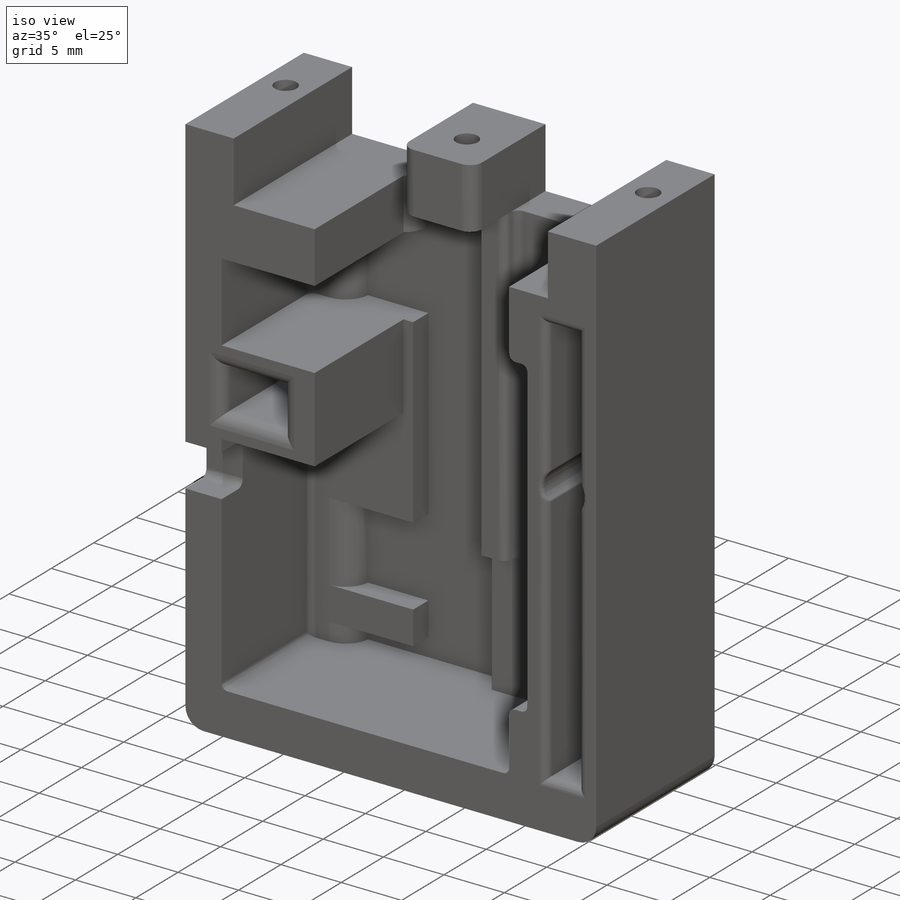
[diagram: iso view]
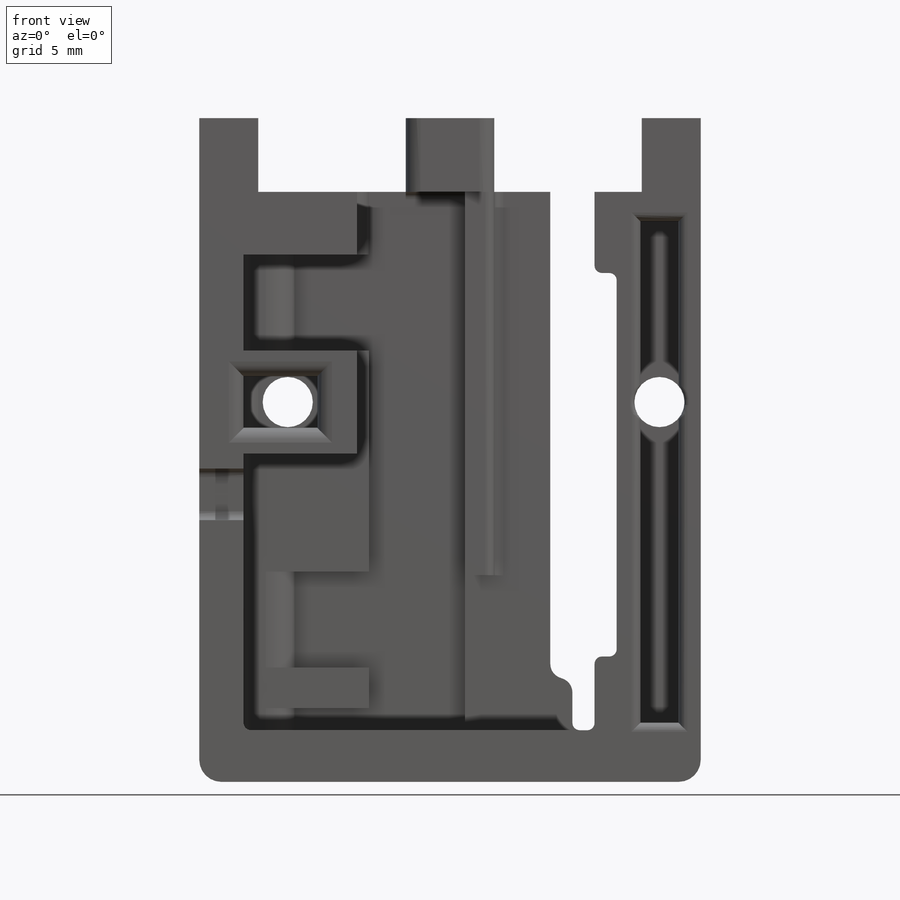
[diagram: front view]
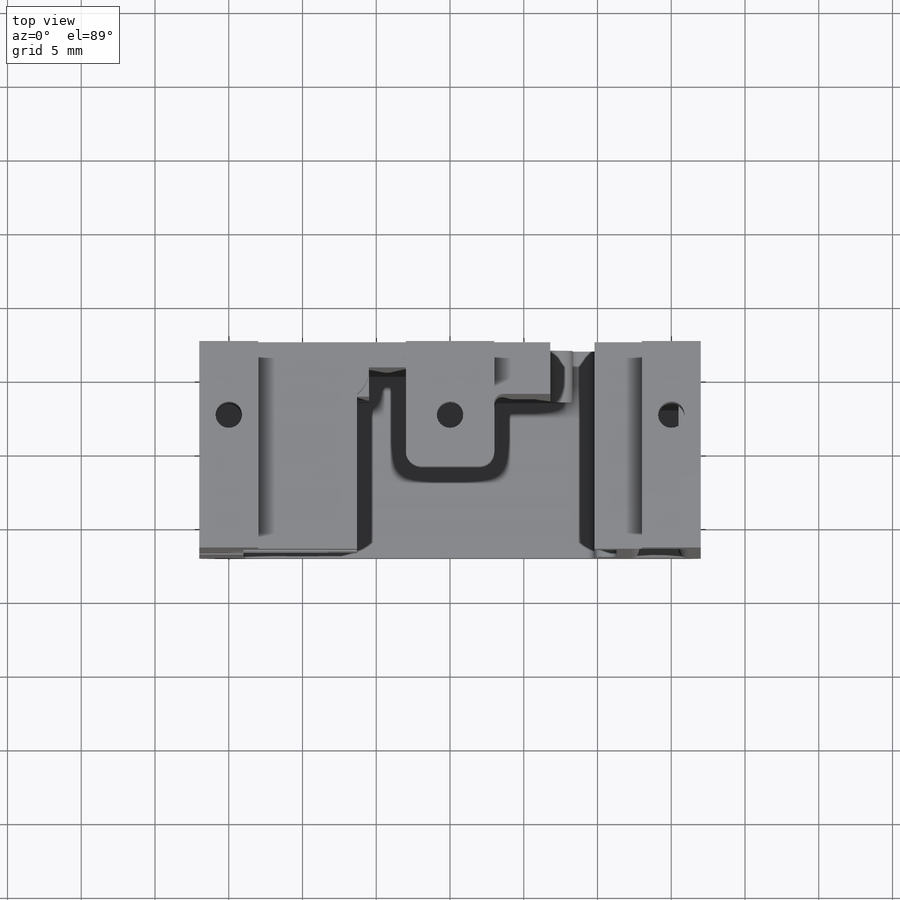
[diagram: top view]
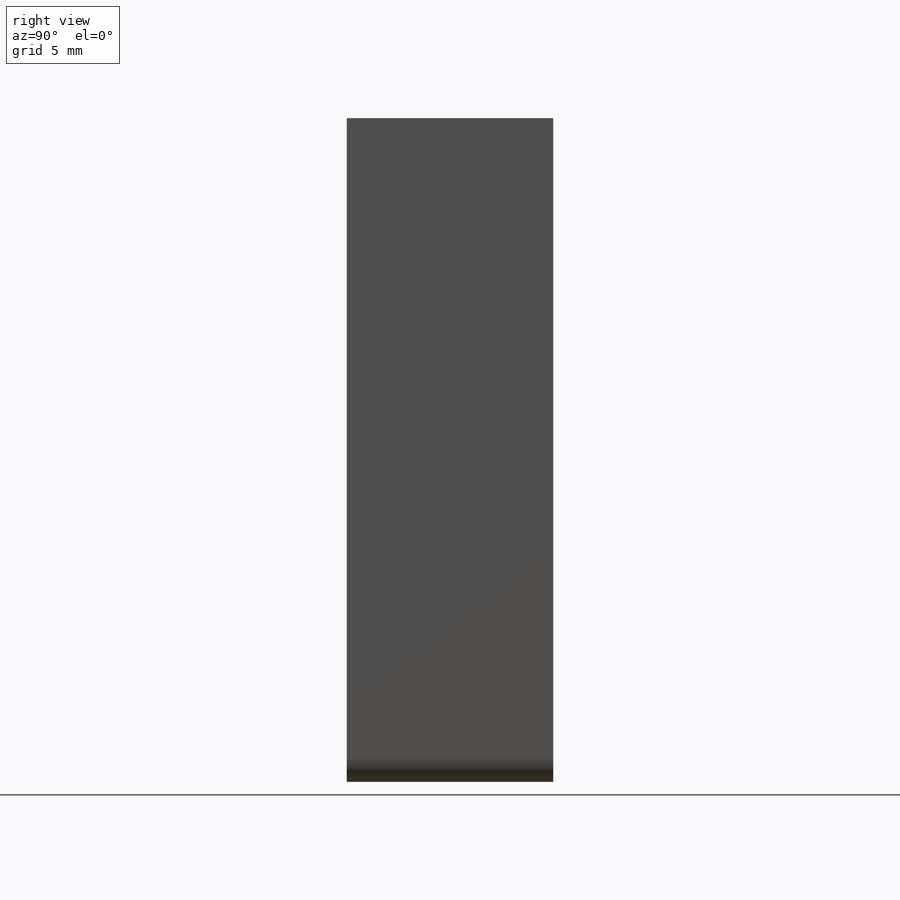
[diagram: right view]
SOLIDWORKS PART (.sldprt)
format: sldprt  version: not decoded by parser v0  size: 798,720 bytes
history: native  units: mm
features: fillet x18, sketch x17, cut_extrude x14, plane x3, extrude x3, material x1 (+10 scaffold rows collapsed)
feature tree (66):
  scaffold x10  (default folders/planes/origin — collapsed)
  material  "Nylon 101"
  plane  "Ebene vorne"
  plane  "Ebene oben"
  plane  "Ebene rechts"
  sketch  "front"  dims[c1.D1=~79.866411mm c1.D2=~62.761098mm c2.D1=34.0mm c2.D2=45.0mm]
  extrude  "front-body"  Depth=14mm
  sketch  "jig-channel"  dims[c1.D1=~5.908131mm c1.D2=~89.593422mm c2.D1=~40.464285mm c2.D2=~4.479671mm c3.D1=41.5mm c3.D2=1.5mm c3.D3=7.2mm]
  cut_extrude  "jig-cut"  [1 undecoded]
  sketch  "jig-channel-cut"  dims[c1.D1=~29.816485mm c1.D2=~1.149833mm c2.D1=1.5mm c2.D2=38.0mm c2.D3=7.0mm]
  cut_extrude  "jig-channel cut"  [1 undecoded]
  sketch  "rack-channle"  dims[c1.D1=~6.352342mm c1.D2=~10.135515mm c2.D1=10.0mm c2.D2=5.0mm c2.D3=4.0mm c2.D4=5.0mm c2.D5=~6.494669mm c3.D4=5.0mm c3.D5=10.0mm c3.D6=4.0mm]
  cut_extrude  "rack-channel"  [1 undecoded]
  sketch  "glider-range-cut"  dims[c1.D1=~9.015991mm c1.D2=~1.924107mm c2.D1=1.5mm c2.D2=26.0mm c2.D3=10.5mm]
  cut_extrude  "glider-rangecut"  [1 undecoded]
  fillet  "Verrundung2"  Radius=0.5mm
  fillet  "Verrundung3"  Radius=0.5mm
  sketch  "hollo-"  dims[c1.D1=~24.549328mm c1.D2=~14.12016mm c2.D1=36.5mm c2.D2=23.0mm c2.D3=5.0mm c2.D4=3.0mm]
  cut_extrude  "hollo"  Depth=10.5mm
  sketch  "g-cut"  dims[D1=5.0mm D2=6.0mm]
  cut_extrude  "gear-cut"  Depth=5.5mm
  fillet  "Verrundung5"  Radius=1mm
  fillet  "Verrundung6"  Radius=1mm
  sketch  "glider-location-"  dims[c1.D1=36.5mm c1.D2=~6.755563mm c2.D1=6.5mm c2.D2=8.5mm]
  cut_extrude  "glider-loc"  Depth=1.8mm
  fillet  "Verrundung7"  Radius=0.5mm
  sketch  "glider-pin-out"  dims[c1.D1=7.5mm c1.D2=7.5mm c1.D3=~6.563805mm c1.D4=~2.739545mm c2.D3=5.0mm c2.D4=6.5mm c2.D5=~8.099352mm c2.D6=5.0mm c3.D5=6.5mm c3.D6=5.0mm c3.D7=~0.81005mm c3.D8=5.0mm c4.D7=1.5mm]
  cut_extrude  "glider pins"  Depth=1.8mm
  sketch  "motor-holder-block"  dims[c1.D1=~7.927974mm c1.D2=~7.091343mm c2.D1=7.7mm c2.D2=7.0mm c2.D3=0.0mm c2.D4=~2.810628mm c2.D5=8.5mm c3.D4=2.5mm c3.D5=8.5mm c4.D4=~1.852737mm c4.D5=8.5mm c5.D4=~1.661159mm c5.D5=8.0mm c6.D4=4.2mm c6.D5=7.7mm c7.D4=4.25mm c7.D5=7.7mm c8.D4=7.7mm]
  extrude  "motor-holder"  Depth=10.5mm
  fillet  "Verrundung9"  Radius=1mm
  sketch  "bore"  dims[c1.D1=1.8mm c1.D4=~2.472312mm c1.D2=5.0mm c1.D3=~3.203911mm c2.D3=90.0deg c3.D3=~3.203911mm c4.D3=90.0deg c5.D3=2.0mm c5.D4=2.0mm c5.D5=5.0mm]
  cut_extrude  "screw-bore"  Depth=10mm
  sketch  "bore2"  dims[c1.D1=~2.830227mm c1.D3=1.8mm c2.D1=5.0mm c2.D2=3.0mm]
  cut_extrude  "top-middle-screw-bore"  Depth=5mm
  sketch  "fit"  dims[c1.D1=~3.646668mm c1.D2=~5.35989mm c2.D1=3.5mm c2.D2=24.0mm c2.D3=5.0mm c2.D4=3.0mm]
  cut_extrude  "fit-cut"  Depth=12mm
  fillet  "Verrundung10"  Radius=1mm
  fillet  "Verrundung11"  Radius=1mm
  sketch  "fitcut2"  dims[c1.D1=~34.055841mm c1.D2=~2.107855mm c2.D1=2.6mm c2.D2=1.5mm c2.D3=34.0mm c2.D4=4.0mm c2.D5=34.0mm]
  cut_extrude  "fit-cut2"  Depth=10mm
  fillet  "Verrundung12"  Radius=0.6mm
  sketch  "glider more-holder"  dims[c1.D1=~12.233464mm c1.D2=~2.189909mm c2.D1=2.0mm c2.D2=0.0mm c2.D3=26.0mm]
  extrude  "glider-more"  Depth=3mm
  fillet  "Verrundung13"  Radius=0.6mm
  fillet  "Verrundung14"  Radius=0.6mm
  sketch  "cable-out"  dims[c1.D1=~3.322775mm c1.D2=3.0mm c2.D1=3.5mm c2.D2=1.0mm]
  cut_extrude  "cable-out-channel"  Depth=2.5mm
  fillet  "Verrundung15"  Radius=0.6mm
  fillet  "Verrundung16"  Radius=1.5mm
  fillet  "Verrundung23"  Radius=0.5mm
  fillet  "Verrundung24"  Radius=2mm
  fillet  "Verrundung25"  Radius=2mm
  fillet  "Verrundung26"  Radius=2mm
  sketch  "screw"  dims[c1.D1=3.4mm c1.D2=3.4mm c2.D1=4.0mm c2.D2=~10.242143mm]
  cut_extrude  "screw-hole"  Depth=10mm
  fillet  "Verrundung27"  Radius=0.3mm
decode coverage: 48 of 52 modeling features carry decoded parameters
note: ~ marks probable driven/reference dimensions
note: 4 parameter values undecoded
summary: no parameter record found for 4 features
note: suppression state not decoded; provenance and decode notes live in map.json
